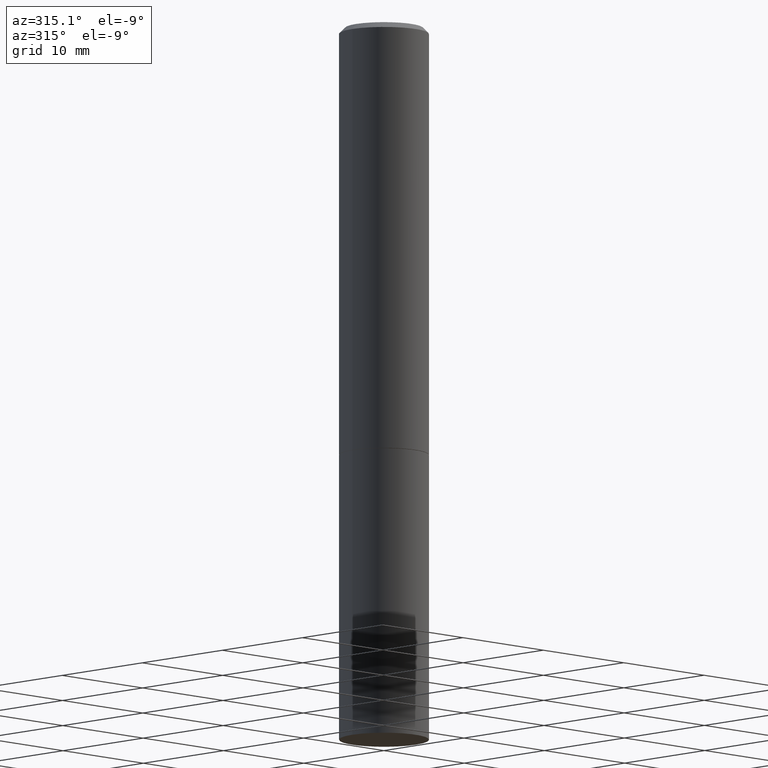
[diagram: clean part render]
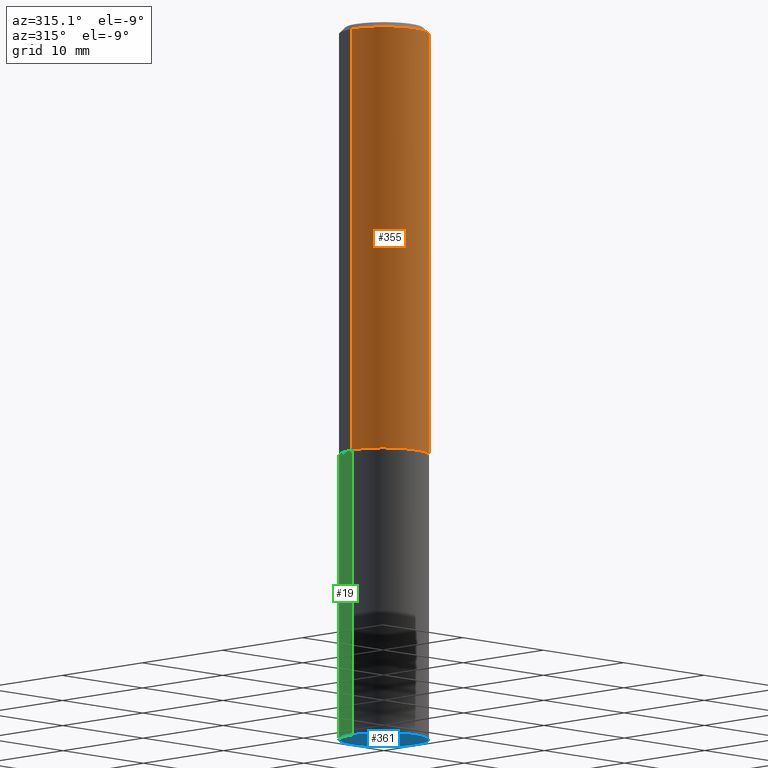
[diagram: same view with three faces highlighted in distinct colors, each labeled with its STEP entity id]
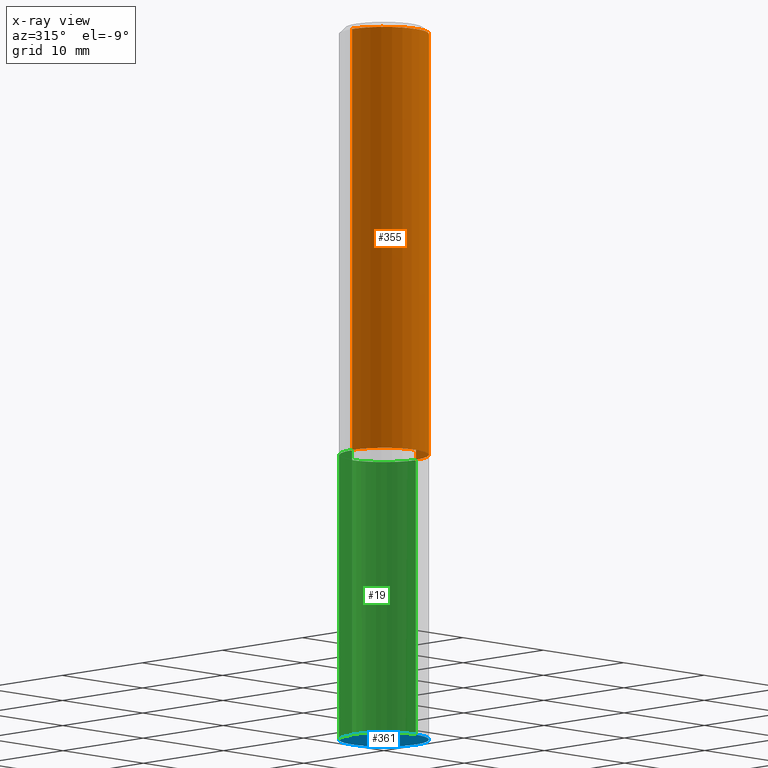
[diagram: x-ray of the same camera — body ghosted, the three highlighted faces saturated]
A machine part, auxiliary view with three faces highlighted in distinct colors.
The next image is the same camera in x-ray (body ghosted, the three faces saturated) — at least one of them is partly hidden behind the body in this view.
Their STEP definitions:

[orange] entity #355 — the highlighted cylindrical surface (partial cylindrical patch) has radius 3.9687 mm, axis along (-0, 0, 1).
#4 = DIRECTION ( 'NONE',  ( 1.000000000000000000, -6.982962677686266711E-15, 0.000000000000000000 ) ) ;
#7 = CARTESIAN_POINT ( 'NONE',  ( 0.1562499999999999445, -1.091087918388478779E-15, 7.619026212181146173E-30 ) ) ;
#12 = EDGE_CURVE ( 'NONE', #90, #177, #349, .T. ) ;
#23 = AXIS2_PLACEMENT_3D ( 'NONE', #134, #189, #55 ) ;
#31 = DIRECTION ( 'NONE',  ( -2.445468806185136877E-29, 3.491481338843145188E-15, 1.000000000000000000 ) ) ;
#45 = CIRCLE ( 'NONE', #262, 0.1562499999999998612 ) ;
#55 = DIRECTION ( 'NONE',  ( 1.000000000000000000, -6.982962677686266711E-15, 4.876176775795935232E-29 ) ) ;
#62 = DIRECTION ( 'NONE',  ( -2.445468806185136877E-29, 3.491481338843145188E-15, 1.000000000000000000 ) ) ;
#82 = CARTESIAN_POINT ( 'NONE',  ( -0.1562499999999998612, 1.021258291611615284E-15, -0.02000000000000003511 ) ) ;
#90 = VERTEX_POINT ( 'NONE', #130 ) ;
#122 = VECTOR ( 'NONE', #31, 39.37007874015748143 ) ;
#126 = ORIENTED_EDGE ( 'NONE', *, *, #159, .F. ) ;
#127 = ORIENTED_EDGE ( 'NONE', *, *, #129, .F. ) ;
#129 = EDGE_CURVE ( 'NONE', #90, #364, #190, .T. ) ;
#130 = CARTESIAN_POINT ( 'NONE',  ( -0.1562500000000000000, -1.541557052226212102E-15, -1.499000000000000110 ) ) ;
#134 = CARTESIAN_POINT ( 'NONE',  ( 0.000000000000000000, 0.000000000000000000, 0.000000000000000000 ) ) ;
#137 = DIRECTION ( 'NONE',  ( 1.000000000000000000, -6.982962677686269077E-15, 0.000000000000000000 ) ) ;
#149 = VECTOR ( 'NONE', #62, 39.37007874015748143 ) ;
#152 = VERTEX_POINT ( 'NONE', #320 ) ;
#157 = CYLINDRICAL_SURFACE ( 'NONE', #23, 0.1562499999999999445 ) ;
#158 = CARTESIAN_POINT ( 'NONE',  ( -0.1562499999999999445, 1.110223024625156146E-15, -7.685836078523286956E-30 ) ) ;
#159 = EDGE_CURVE ( 'NONE', #364, #152, #45, .T. ) ;
#163 = CARTESIAN_POINT ( 'NONE',  ( 3.665757740471519853E-29, -5.233730526925875958E-15, -1.499000000000000110 ) ) ;
#174 = CARTESIAN_POINT ( 'NONE',  ( 4.890937612370281041E-31, -6.982962677686302702E-17, -0.02000000000000003511 ) ) ;
#177 = VERTEX_POINT ( 'NONE', #295 ) ;
#186 = AXIS2_PLACEMENT_3D ( 'NONE', #163, #282, #137 ) ;
#189 = DIRECTION ( 'NONE',  ( -2.445468806185136597E-29, 3.491481338843145583E-15, 1.000000000000000000 ) ) ;
#190 = LINE ( 'NONE', #158, #122 ) ;
#201 = DIRECTION ( 'NONE',  ( -2.445468806185136597E-29, 3.491481338843145583E-15, 1.000000000000000000 ) ) ;
#209 = ORIENTED_EDGE ( 'NONE', *, *, #12, .T. ) ;
#217 = EDGE_CURVE ( 'NONE', #177, #152, #289, .T. ) ;
#262 = AXIS2_PLACEMENT_3D ( 'NONE', #174, #201, #4 ) ;
#282 = DIRECTION ( 'NONE',  ( -2.445468806185136597E-29, 3.491481338843145583E-15, 1.000000000000000000 ) ) ;
#289 = LINE ( 'NONE', #7, #149 ) ;
#295 = CARTESIAN_POINT ( 'NONE',  ( 0.1562500000000000000, -6.324818445314355132E-15, -1.499000000000000110 ) ) ;
#320 = CARTESIAN_POINT ( 'NONE',  ( 0.1562499999999998612, -1.141782438928663922E-15, -0.02000000000000003511 ) ) ;
#329 = EDGE_LOOP ( 'NONE', ( #127, #209, #342, #126 ) ) ;
#330 = FACE_OUTER_BOUND ( 'NONE', #329, .T. ) ;
#342 = ORIENTED_EDGE ( 'NONE', *, *, #217, .T. ) ;
#349 = CIRCLE ( 'NONE', #186, 0.1562500000000000000 ) ;
#355 = ADVANCED_FACE ( 'NONE', ( #330 ), #157, .T. ) ;
#364 = VERTEX_POINT ( 'NONE', #82 ) ;

[blue] entity #361 — the highlighted planar face has unit normal (0, -0, -1).
#13 = ORIENTED_EDGE ( 'NONE', *, *, #309, .F. ) ;
#40 = DIRECTION ( 'NONE',  ( -2.445468806185136597E-29, 3.491481338843145583E-15, 1.000000000000000000 ) ) ;
#43 = CARTESIAN_POINT ( 'NONE',  ( 6.113672015462842613E-29, -8.728703347107864943E-15, -2.500000000000000000 ) ) ;
#68 = CARTESIAN_POINT ( 'NONE',  ( 6.113672015462842613E-29, -8.728703347107864943E-15, -2.500000000000000000 ) ) ;
#69 = DIRECTION ( 'NONE',  ( -2.445468806185136597E-29, 3.491481338843145583E-15, 1.000000000000000000 ) ) ;
#72 = CIRCLE ( 'NONE', #354, 0.1562500000000000000 ) ;
#114 = DIRECTION ( 'NONE',  ( 1.000000000000000000, -6.982962677686269077E-15, 0.000000000000000000 ) ) ;
#116 = AXIS2_PLACEMENT_3D ( 'NONE', #68, #40, #114 ) ;
#132 = DIRECTION ( 'NONE',  ( 2.438088387897960049E-29, -3.491481338843145188E-15, -1.000000000000000000 ) ) ;
#141 = EDGE_LOOP ( 'NONE', ( #188, #13 ) ) ;
#166 = CARTESIAN_POINT ( 'NONE',  ( 0.1562500000000000000, -9.819791265496344905E-15, -2.500000000000000000 ) ) ;
#176 = EDGE_CURVE ( 'NONE', #332, #208, #337, .T. ) ;
#188 = ORIENTED_EDGE ( 'NONE', *, *, #176, .F. ) ;
#208 = VERTEX_POINT ( 'NONE', #254 ) ;
#231 = AXIS2_PLACEMENT_3D ( 'NONE', #308, #132, #243 ) ;
#243 = DIRECTION ( 'NONE',  ( -1.000000000000000000, 6.982962677686265922E-15, -4.876176775795935793E-29 ) ) ;
#247 = PLANE ( 'NONE',  #231 ) ;
#254 = CARTESIAN_POINT ( 'NONE',  ( -0.1562500000000000000, -5.872739653061135414E-15, -2.500000000000000000 ) ) ;
#296 = DIRECTION ( 'NONE',  ( 1.000000000000000000, -6.982962677686269077E-15, 0.000000000000000000 ) ) ;
#308 = CARTESIAN_POINT ( 'NONE',  ( 1.091087918388540310E-15, 0.1562499999999912570, -2.500000000000000444 ) ) ;
#309 = EDGE_CURVE ( 'NONE', #208, #332, #72, .T. ) ;
#332 = VERTEX_POINT ( 'NONE', #166 ) ;
#337 = CIRCLE ( 'NONE', #116, 0.1562500000000000000 ) ;
#338 = FACE_OUTER_BOUND ( 'NONE', #141, .T. ) ;
#354 = AXIS2_PLACEMENT_3D ( 'NONE', #43, #69, #296 ) ;
#361 = ADVANCED_FACE ( 'NONE', ( #338 ), #247, .T. ) ;

[green] entity #19 — the highlighted cylindrical surface (partial cylindrical patch) has radius 3.9688 mm, axis along (-0, 0, 1).
#1 = FACE_OUTER_BOUND ( 'NONE', #50, .T. ) ;
#3 = CARTESIAN_POINT ( 'NONE',  ( 3.668203209277704895E-29, -5.237222008264718177E-15, -1.500000000000000222 ) ) ;
#6 = DIRECTION ( 'NONE',  ( -2.445468806185136597E-29, 3.491481338843145583E-15, 1.000000000000000000 ) ) ;
#10 = DIRECTION ( 'NONE',  ( -2.445468806185136877E-29, 3.491481338843145188E-15, 1.000000000000000000 ) ) ;
#19 = ADVANCED_FACE ( 'NONE', ( #1 ), #86, .T. ) ;
#30 = ORIENTED_EDGE ( 'NONE', *, *, #176, .T. ) ;
#40 = DIRECTION ( 'NONE',  ( -2.445468806185136597E-29, 3.491481338843145583E-15, 1.000000000000000000 ) ) ;
#48 = VECTOR ( 'NONE', #317, 39.37007874015748143 ) ;
#50 = EDGE_LOOP ( 'NONE', ( #30, #113, #268, #216 ) ) ;
#68 = CARTESIAN_POINT ( 'NONE',  ( 6.113672015462842613E-29, -8.728703347107864943E-15, -2.500000000000000000 ) ) ;
#81 = DIRECTION ( 'NONE',  ( -2.445468806185136597E-29, 3.491481338843145583E-15, 1.000000000000000000 ) ) ;
#86 = CYLINDRICAL_SURFACE ( 'NONE', #291, 0.1562500000000000000 ) ;
#89 = CARTESIAN_POINT ( 'NONE',  ( 0.1562500000000000000, -1.091087918388479174E-15, 7.619026212181150377E-30 ) ) ;
#109 = DIRECTION ( 'NONE',  ( 1.000000000000000000, -6.982962677686269077E-15, 0.000000000000000000 ) ) ;
#111 = CARTESIAN_POINT ( 'NONE',  ( 0.1562500000000000000, -6.328309926653198139E-15, -1.500000000000000222 ) ) ;
#113 = ORIENTED_EDGE ( 'NONE', *, *, #300, .T. ) ;
#114 = DIRECTION ( 'NONE',  ( 1.000000000000000000, -6.982962677686269077E-15, 0.000000000000000000 ) ) ;
#116 = AXIS2_PLACEMENT_3D ( 'NONE', #68, #40, #114 ) ;
#123 = DIRECTION ( 'NONE',  ( 1.000000000000000000, -6.982962677686266711E-15, 4.876176775795936353E-29 ) ) ;
#166 = CARTESIAN_POINT ( 'NONE',  ( 0.1562500000000000000, -9.819791265496344905E-15, -2.500000000000000000 ) ) ;
#176 = EDGE_CURVE ( 'NONE', #332, #208, #337, .T. ) ;
#184 = VERTEX_POINT ( 'NONE', #224 ) ;
#196 = CARTESIAN_POINT ( 'NONE',  ( 0.000000000000000000, 0.000000000000000000, 0.000000000000000000 ) ) ;
#200 = LINE ( 'NONE', #89, #48 ) ;
#208 = VERTEX_POINT ( 'NONE', #254 ) ;
#216 = ORIENTED_EDGE ( 'NONE', *, *, #242, .F. ) ;
#224 = CARTESIAN_POINT ( 'NONE',  ( -0.1562500000000000000, -5.872739653061135414E-15, -1.500000000000000222 ) ) ;
#237 = VERTEX_POINT ( 'NONE', #111 ) ;
#242 = EDGE_CURVE ( 'NONE', #332, #237, #200, .T. ) ;
#246 = AXIS2_PLACEMENT_3D ( 'NONE', #3, #81, #109 ) ;
#254 = CARTESIAN_POINT ( 'NONE',  ( -0.1562500000000000000, -5.872739653061135414E-15, -2.500000000000000000 ) ) ;
#255 = CIRCLE ( 'NONE', #246, 0.1562500000000000000 ) ;
#259 = LINE ( 'NONE', #284, #280 ) ;
#268 = ORIENTED_EDGE ( 'NONE', *, *, #339, .F. ) ;
#280 = VECTOR ( 'NONE', #10, 39.37007874015748143 ) ;
#284 = CARTESIAN_POINT ( 'NONE',  ( -0.1562500000000000000, 1.110223024625156540E-15, -7.685836078523291160E-30 ) ) ;
#291 = AXIS2_PLACEMENT_3D ( 'NONE', #196, #6, #123 ) ;
#300 = EDGE_CURVE ( 'NONE', #208, #184, #259, .T. ) ;
#317 = DIRECTION ( 'NONE',  ( -2.445468806185136877E-29, 3.491481338843145188E-15, 1.000000000000000000 ) ) ;
#332 = VERTEX_POINT ( 'NONE', #166 ) ;
#337 = CIRCLE ( 'NONE', #116, 0.1562500000000000000 ) ;
#339 = EDGE_CURVE ( 'NONE', #237, #184, #255, .T. ) ;